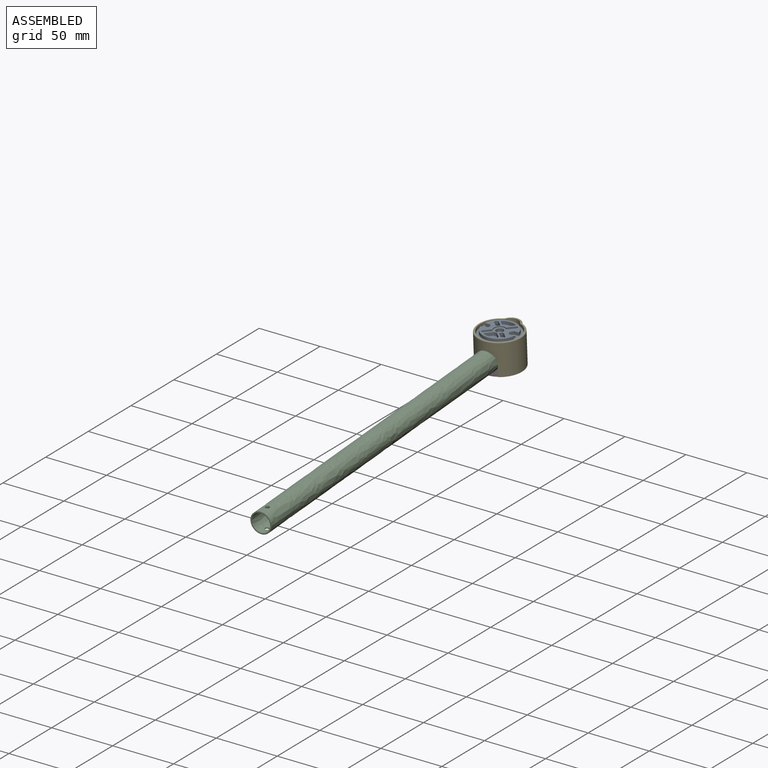
[diagram: assembled view]
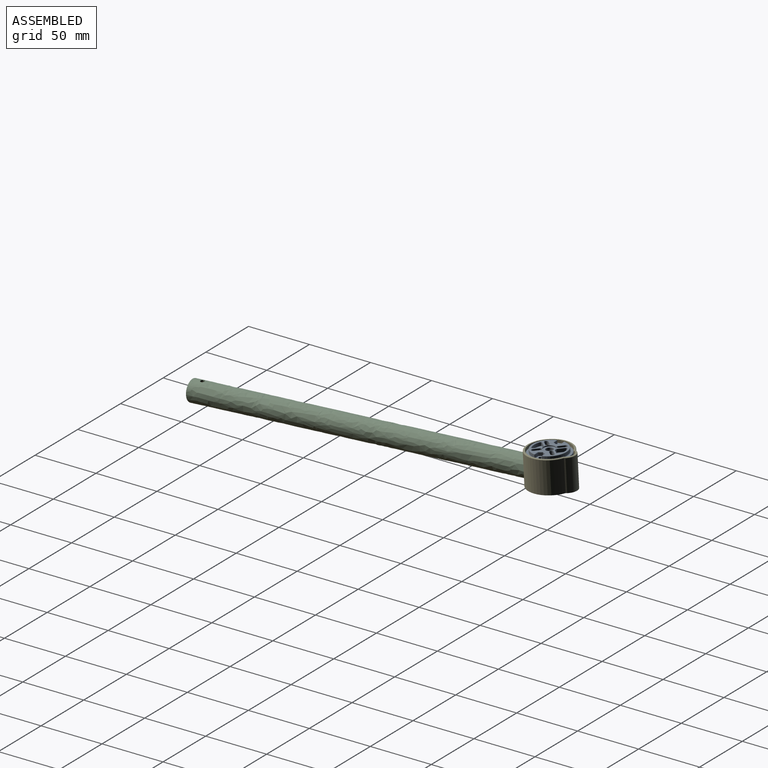
[diagram: assembled view, second angle]
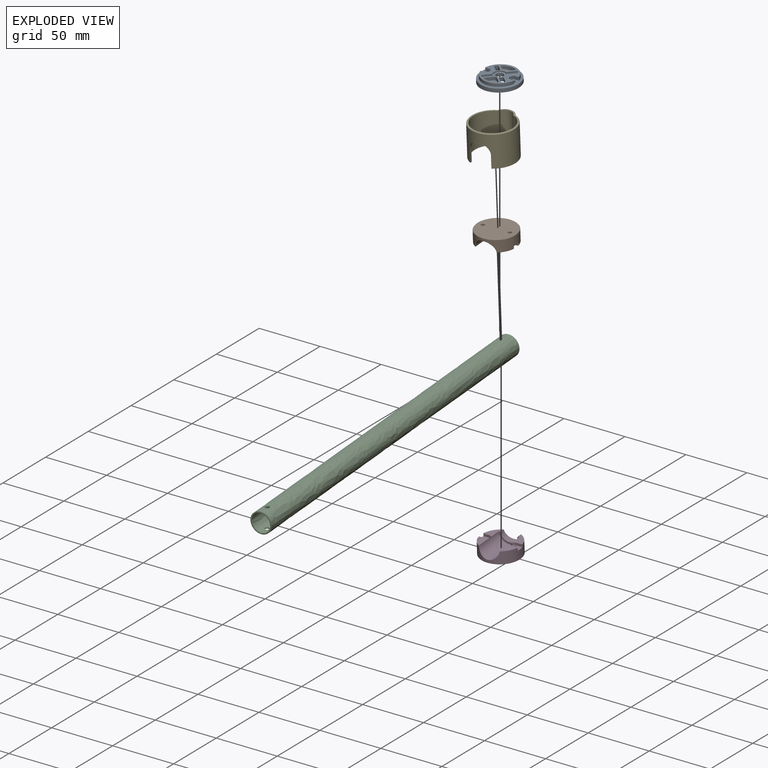
[diagram: exploded view]
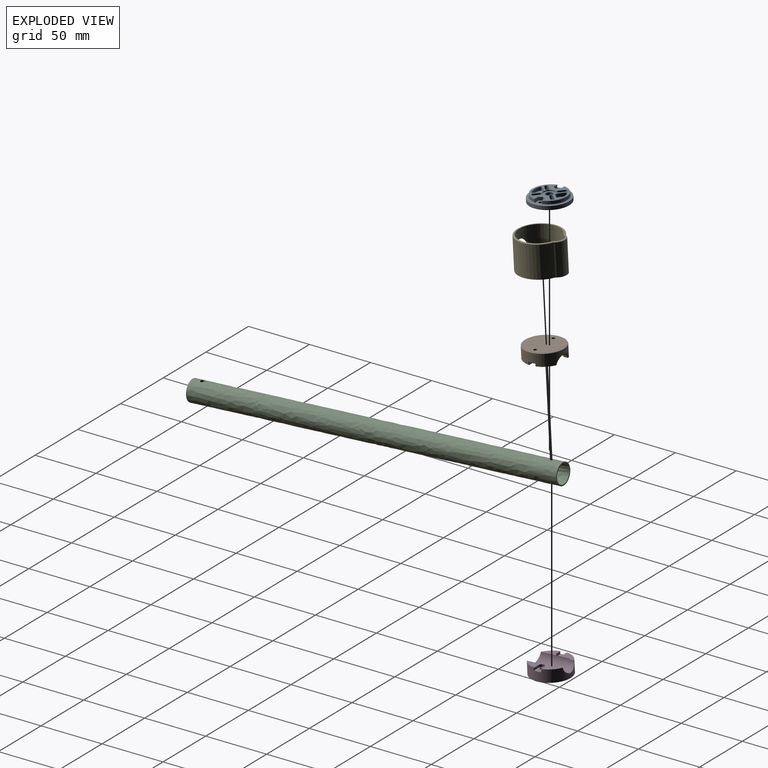
[diagram: exploded view, second angle]
ASSEMBLY  parts=5 mates=4
PART A: 193 faces, bbox 32.3x32.4x6.3 mm
  f0: cylinder r=3mm len=6mm, axis (0,0,-1), area 47.1mm2, adj f26,f50
  f1: plane 27.5x26.84mm, normal (0,0,1), area 231.7mm2, adj f74,f75,f76,f77,f78,f79,f80,f81
  f2: cylinder r=1.5mm len=2.56mm, axis (0,0,-1), area 11.8mm2, adj f3,f14,f131,f178
  f3: plane 3.18x3.18mm, normal (-0.71,0.71,0), area 11.2mm2, adj f2,f4,f140,f177
  f4: cylinder r=1.5mm len=2.56mm, axis (0,0,-1), area 11.8mm2, adj f3,f14,f146,f179
  f5: plane 3.18x3.18mm, normal (-0.71,0.71,0), area 11.2mm2, adj f6,f15,f133,f185
  f6: cylinder r=1.5mm len=2.56mm, axis (0,0,-1), area 11.8mm2, adj f5,f7,f127,f186
  f7: plane 3.18x3.18mm, normal (0.71,-0.71,0), area 11.2mm2, adj f6,f15,f134,f188
  f8: cylinder r=1.5mm len=2.56mm, axis (0,0,-1), area 11.8mm2, adj f9,f16,f132,f190
  f9: plane 3.18x3.18mm, normal (0.71,0.71,0), area 11.2mm2, adj f8,f10,f142,f192
  f10: cylinder r=1.5mm len=2.56mm, axis (0,0,-1), area 11.8mm2, adj f9,f16,f147,f191
  f11: cylinder r=1.5mm len=2.56mm, axis (0,0,-1), area 11.8mm2, adj f12,f17,f144,f183
  f12: plane 3.18x3.18mm, normal (0.71,0.71,0), area 11.2mm2, adj f11,f13,f135,f181
  f13: cylinder r=1.5mm len=2.56mm, axis (0,0,-1), area 11.8mm2, adj f12,f17,f128,f182
  f14: plane 3.18x3.18mm, normal (0.71,-0.71,0), area 11.2mm2, adj f2,f4,f139,f180
  f15: cylinder r=1.5mm len=2.56mm, axis (0,0,-1), area 11.8mm2, adj f5,f7,f143,f187
  f16: plane 3.18x3.18mm, normal (-0.71,-0.71,0), area 11.2mm2, adj f8,f10,f141,f189
  f17: plane 3.18x3.18mm, normal (-0.71,-0.71,0), area 11.2mm2, adj f11,f13,f136,f184
  f18: cylinder r=14mm len=27.33mm, axis (0,0,-1), area 85.1mm2, adj f106,f156,f158,f160
  f19: cylinder r=14mm len=27.33mm, axis (0,0,-1), area 85.1mm2, adj f107,f171,f173,f175
  f20: plane 32.26x32.26mm, normal (0,0,1), area 186.1mm2, adj f21,f22,f23,f106,f107,f157,f159,f161
  f21: cylinder r=1.5mm len=3mm, axis (0,0,-1), area 28.3mm2, adj f20,f24
  f22: cylinder r=1.5mm len=3mm, axis (0,0,-1), area 28.3mm2, adj f20,f24
  f23: cylinder r=16mm len=32mm, axis (0,0,-1), area 301.6mm2, adj f20,f24
  f24: plane 32x32mm, normal (0,0,-1), area 352.4mm2, adj f21,f22,f23,f82,f83,f84,f85,f86
  f25: cylinder r=4.75mm len=9.5mm, axis (0,0,1), area 22.4mm2, adj f26,f145
  f26: plane 9.5x9.5mm, normal (0,0,1), area 42.6mm2, adj f0,f25
  f27: plane 4.05x2.5mm, normal (0,1,0), area 10mm2, adj f28,f74,f172,f175,f176
  f28: plane 2.75x2.5mm, normal (-0.87,0.5,0), area 7.9mm2, adj f27,f29,f76,f170
  f29: plane 2.75x2.5mm, normal (-0.87,-0.5,0), area 7.9mm2, adj f28,f30,f77,f168
  f30: plane 4.05x2.5mm, normal (0,-1,0), area 10mm2, adj f29,f75,f160,f162,f166
  f31: plane 4.05x2.5mm, normal (0,-1,0), area 10mm2, adj f32,f78,f155,f156,f159
  f32: plane 2.75x2.5mm, normal (0.87,-0.5,0), area 7.9mm2, adj f31,f33,f79,f161
  f33: plane 2.75x2.5mm, normal (0.87,0.5,0), area 7.9mm2, adj f32,f34,f80,f163
  f34: plane 4.05x2.5mm, normal (0,1,0), area 10mm2, adj f33,f81,f165,f169,f171
  f35: plane 3.18x3.18mm, normal (0.71,0.71,0), area 9mm2, adj f36,f39,f50,f97
  f36: cylinder r=4mm len=2.46mm, axis (0,0,-1), area 5.5mm2, adj f35,f50,f84,f96
  f37: plane 3.18x3.18mm, normal (-0.71,-0.71,0), area 9mm2, adj f38,f39,f50,f99
  f38: cylinder r=4mm len=2.46mm, axis (0,0,-1), area 5.5mm2, adj f37,f50,f83,f100
  f39: cylinder r=4mm len=6.83mm, axis (0,0,-1), area 25.1mm2, adj f35,f37,f50,f98
  f40: cylinder r=4mm len=2.46mm, axis (0,0,-1), area 5.5mm2, adj f42,f50,f82,f86
  f41: plane 3.18x3.18mm, normal (0.71,0.71,0), area 9mm2, adj f43,f44,f50,f89
  f42: plane 3.18x3.18mm, normal (-0.71,-0.71,0), area 9mm2, adj f40,f44,f50,f87
  f43: cylinder r=4mm len=2.46mm, axis (0,0,-1), area 5.5mm2, adj f41,f50,f85,f90
  f44: cylinder r=4mm len=6.83mm, axis (0,0,-1), area 25.1mm2, adj f41,f42,f50,f88
  f45: plane 3.18x3.18mm, normal (-0.71,0.71,0), area 9mm2, adj f48,f49,f50,f104
  f46: plane 3.18x3.18mm, normal (0.71,-0.71,0), area 9mm2, adj f47,f48,f50,f102
  f47: cylinder r=4mm len=2.46mm, axis (0,0,-1), area 5.5mm2, adj f46,f50,f85,f101
  f48: cylinder r=4mm len=6.83mm, axis (0,0,-1), area 25.1mm2, adj f45,f46,f50,f103
  f49: cylinder r=4mm len=2.46mm, axis (0,0,-1), area 5.5mm2, adj f45,f50,f84,f105
  f50: plane 23.56x23.56mm, normal (0,0,-1), area 208.3mm2, adj f0,f35,f36,f37,f38,f39,f40,f41
  f51: cylinder r=4mm len=2.46mm, axis (0,0,-1), area 5.5mm2, adj f50,f53,f83,f91
  f52: plane 3.18x3.18mm, normal (0.71,-0.71,0), area 9mm2, adj f50,f54,f55,f94
  f53: plane 3.18x3.18mm, normal (-0.71,0.71,0), area 9mm2, adj f50,f51,f55,f92
  f54: cylinder r=4mm len=2.46mm, axis (0,0,-1), area 5.5mm2, adj f50,f52,f82,f95
  f55: cylinder r=4mm len=6.83mm, axis (0,0,-1), area 25.1mm2, adj f50,f52,f53,f93
  f56: plane 4.03x4.03mm, normal (-0.71,0.71,0), area 14.2mm2, adj f60,f63,f108,f130
  f57: plane 4.03x4.03mm, normal (0.71,0.71,0), area 14.2mm2, adj f61,f62,f115,f129
  f58: cylinder r=12.25mm len=10.13mm, axis (0,0,1), area 26.1mm2, adj f62,f63,f112,f124
  f59: cylinder r=5.25mm len=2.5mm, axis (0,0,1), area 2.6mm2, adj f60,f61,f111,f145
  f60: cylinder r=1mm len=2.5mm, axis (0,0,1), area 2.2mm2, adj f56,f59,f109,f138
  f61: cylinder r=1mm len=2.5mm, axis (0,0,1), area 2.2mm2, adj f57,f59,f113,f137
  f62: cylinder r=1mm len=2.5mm, axis (0,0,1), area 4.8mm2, adj f57,f58,f114,f125
  f63: cylinder r=1mm len=2.5mm, axis (0,0,1), area 4.8mm2, adj f56,f58,f110,f126
  f64: plane 10.8x6.53mm, normal (0,0,1), area 46mm2, adj f108,f109,f110,f111,f112,f113,f114,f115
  f65: cylinder r=5.25mm len=2.5mm, axis (0,0,1), area 2.6mm2, adj f69,f70,f119,f145
  f66: plane 4.03x4.03mm, normal (-0.71,-0.71,0), area 14.2mm2, adj f69,f72,f116,f148
  f67: plane 4.03x4.03mm, normal (0.71,-0.71,0), area 14.2mm2, adj f70,f71,f123,f154
  f68: cylinder r=12.25mm len=10.13mm, axis (0,0,1), area 26.1mm2, adj f71,f72,f120,f151
  f69: cylinder r=1mm len=2.5mm, axis (0,0,1), area 2.2mm2, adj f65,f66,f117,f150
  f70: cylinder r=1mm len=2.5mm, axis (0,0,1), area 2.2mm2, adj f65,f67,f121,f153
  f71: cylinder r=1mm len=2.5mm, axis (0,0,1), area 4.8mm2, adj f67,f68,f122,f152
  f72: cylinder r=1mm len=2.5mm, axis (0,0,1), area 4.8mm2, adj f66,f68,f118,f149
  f73: plane 10.8x6.53mm, normal (0,0,1), area 46mm2, adj f116,f117,f118,f119,f120,f121,f122,f123
  f74: plane 4.45x0.32mm, normal (0,0.71,0.71), area 1.5mm2, adj f1,f27,f76,f173,f175
  f75: plane 4.45x0.32mm, normal (0,-0.71,0.71), area 1.5mm2, adj f1,f30,f77,f158,f160
  f76: plane 3x1.88mm, normal (-0.61,0.35,0.71), area 1.2mm2, adj f1,f28,f74,f77
  f77: plane 3x1.88mm, normal (-0.61,-0.35,0.71), area 1.2mm2, adj f1,f29,f75,f76
  f78: plane 4.45x0.32mm, normal (0,-0.71,0.71), area 1.5mm2, adj f1,f31,f79,f156,f158
  f79: plane 3x1.88mm, normal (0.61,-0.35,0.71), area 1.2mm2, adj f1,f32,f78,f80
  f80: plane 3x1.88mm, normal (0.61,0.35,0.71), area 1.2mm2, adj f1,f33,f79,f81
  f81: plane 4.45x0.32mm, normal (0,0.71,0.71), area 1.5mm2, adj f1,f34,f80,f171,f173
  f82: cylinder r=5mm len=2.5mm, axis (0,0,-1), area 2.8mm2, adj f24,f40,f50,f54,f86,f95
  f83: cylinder r=5mm len=2.5mm, axis (0,0,-1), area 2.8mm2, adj f24,f38,f50,f51,f91,f100
  f84: cylinder r=5mm len=2.5mm, axis (0,0,-1), area 2.8mm2, adj f24,f36,f49,f50,f96,f105
  f85: cylinder r=5mm len=2.5mm, axis (0,0,-1), area 2.8mm2, adj f24,f43,f47,f50,f90,f101
  f86: cone r=4mm half-angle=45deg, axis (0,0,-1), area 2.1mm2, adj f24,f40,f82,f87
  f87: plane 3.54x3.54mm, normal (-0.5,-0.5,-0.71), area 3.2mm2, adj f24,f42,f86,f88
  f88: cone r=4mm half-angle=45deg, axis (0,0,-1), area 9.4mm2, adj f24,f44,f87,f89
  f89: plane 3.54x3.54mm, normal (0.5,0.5,-0.71), area 3.2mm2, adj f24,f41,f88,f90
  f90: cone r=4mm half-angle=45deg, axis (0,0,-1), area 2.1mm2, adj f24,f43,f85,f89
  f91: cone r=4mm half-angle=45deg, axis (0,0,-1), area 2.1mm2, adj f24,f51,f83,f92
  f92: plane 3.54x3.54mm, normal (-0.5,0.5,-0.71), area 3.2mm2, adj f24,f53,f91,f93
  f93: cone r=4mm half-angle=45deg, axis (0,0,-1), area 9.4mm2, adj f24,f55,f92,f94
  f94: plane 3.54x3.54mm, normal (0.5,-0.5,-0.71), area 3.2mm2, adj f24,f52,f93,f95
  f95: cone r=4mm half-angle=45deg, axis (0,0,-1), area 2.1mm2, adj f24,f54,f82,f94
  f96: cone r=4mm half-angle=45deg, axis (0,0,-1), area 2.1mm2, adj f24,f36,f84,f97
  f97: plane 3.54x3.54mm, normal (0.5,0.5,-0.71), area 3.2mm2, adj f24,f35,f96,f98
  f98: cone r=4mm half-angle=45deg, axis (0,0,-1), area 9.4mm2, adj f24,f39,f97,f99
  f99: plane 3.54x3.54mm, normal (-0.5,-0.5,-0.71), area 3.2mm2, adj f24,f37,f98,f100
  f100: cone r=4mm half-angle=45deg, axis (0,0,-1), area 2.1mm2, adj f24,f38,f83,f99
  f101: cone r=4mm half-angle=45deg, axis (0,0,-1), area 2.1mm2, adj f24,f47,f85,f102
  f102: plane 3.54x3.54mm, normal (0.5,-0.5,-0.71), area 3.2mm2, adj f24,f46,f101,f103
  f103: cone r=4mm half-angle=45deg, axis (0,0,-1), area 9.4mm2, adj f24,f48,f102,f104
  f104: plane 3.54x3.54mm, normal (-0.5,0.5,-0.71), area 3.2mm2, adj f24,f45,f103,f105
  f105: cone r=4mm half-angle=45deg, axis (0,0,-1), area 2.1mm2, adj f24,f49,f84,f104
  f106: torus R=14.5mm, axis (0,0,1), area 30.2mm2, adj f18,f20,f155,f162
  f107: torus R=14.5mm, axis (0,0,1), area 30.2mm2, adj f19,f20,f169,f176
  f108: cylinder r=0.25mm len=4.2mm, axis (-0.71,-0.71,0), area 2.2mm2, adj f56,f64,f109,f110
  f109: torus R=0.75mm, axis (0,0,1), area 0.3mm2, adj f60,f64,f108,f111
  f110: torus R=0.75mm, axis (0,0,1), area 0.7mm2, adj f63,f64,f108,f112
  f111: torus R=5.5mm, axis (0,0,1), area 0.4mm2, adj f59,f64,f109,f113
  f112: torus R=12mm, axis (0,0,1), area 4.1mm2, adj f58,f64,f110,f114
  f113: torus R=0.75mm, axis (0,0,1), area 0.3mm2, adj f61,f64,f111,f115
  f114: torus R=0.75mm, axis (0,0,1), area 0.7mm2, adj f62,f64,f112,f115
  f115: cylinder r=0.25mm len=4.2mm, axis (-0.71,0.71,0), area 2.2mm2, adj f57,f64,f113,f114
  f116: cylinder r=0.25mm len=4.2mm, axis (0.71,-0.71,0), area 2.2mm2, adj f66,f73,f117,f118
  f117: torus R=0.75mm, axis (0,0,1), area 0.3mm2, adj f69,f73,f116,f119
  f118: torus R=0.75mm, axis (0,0,1), area 0.7mm2, adj f72,f73,f116,f120
  f119: torus R=5.5mm, axis (0,0,1), area 0.4mm2, adj f65,f73,f117,f121
  f120: torus R=12mm, axis (0,0,1), area 4.1mm2, adj f68,f73,f118,f122
  f121: torus R=0.75mm, axis (0,0,1), area 0.3mm2, adj f70,f73,f119,f123
  f122: torus R=0.75mm, axis (0,0,1), area 0.7mm2, adj f71,f73,f120,f123
  f123: cylinder r=0.25mm len=4.2mm, axis (0.71,0.71,0), area 2.2mm2, adj f67,f73,f121,f122
  f124: torus R=12.5mm, axis (0,0,1), area 4.1mm2, adj f1,f58,f125,f126
  f125: torus R=1.25mm, axis (0,0,1), area 0.8mm2, adj f1,f62,f124,f129
  f126: torus R=1.25mm, axis (0,0,1), area 0.8mm2, adj f1,f63,f124,f130
  f127: torus R=1.75mm, axis (0,0,1), area 2mm2, adj f1,f6,f133,f134
  f128: torus R=1.75mm, axis (0,0,1), area 2mm2, adj f1,f13,f135,f136
  f129: cylinder r=0.25mm len=4.2mm, axis (-0.71,0.71,0), area 2.2mm2, adj f1,f57,f125,f137
  f130: cylinder r=0.25mm len=4.2mm, axis (-0.71,-0.71,0), area 2.2mm2, adj f1,f56,f126,f138
  f131: torus R=1.75mm, axis (0,0,1), area 2mm2, adj f1,f2,f139,f140
  f132: torus R=1.75mm, axis (0,0,1), area 2mm2, adj f1,f8,f141,f142
  f133: cylinder r=0.25mm len=3.36mm, axis (0.71,0.71,0), area 1.8mm2, adj f1,f5,f127,f143
  f134: cylinder r=0.25mm len=3.36mm, axis (-0.71,-0.71,0), area 1.8mm2, adj f1,f7,f127,f143
  f135: cylinder r=0.25mm len=3.36mm, axis (0.71,-0.71,0), area 1.8mm2, adj f1,f12,f128,f144
  f136: cylinder r=0.25mm len=3.36mm, axis (-0.71,0.71,0), area 1.8mm2, adj f1,f17,f128,f144
  f137: torus R=1.25mm, axis (0,0,1), area 0.4mm2, adj f1,f61,f129,f145
  f138: torus R=1.25mm, axis (0,0,1), area 0.4mm2, adj f1,f60,f130,f145
  f139: cylinder r=0.25mm len=3.36mm, axis (-0.71,-0.71,0), area 1.8mm2, adj f1,f14,f131,f146
  f140: cylinder r=0.25mm len=3.36mm, axis (0.71,0.71,0), area 1.8mm2, adj f1,f3,f131,f146
  f141: cylinder r=0.25mm len=3.36mm, axis (-0.71,0.71,0), area 1.8mm2, adj f1,f16,f132,f147
  f142: cylinder r=0.25mm len=3.36mm, axis (0.71,-0.71,0), area 1.8mm2, adj f1,f9,f132,f147
  f143: torus R=1.75mm, axis (0,0,1), area 1.8mm2, adj f1,f15,f133,f134,f145
  f144: torus R=1.75mm, axis (0,0,1), area 1.8mm2, adj f1,f11,f135,f136,f145
  f145: torus R=5mm, axis (0,0,1), area 12.2mm2, adj f1,f25,f59,f65,f137,f138,f143,f144
  f146: torus R=1.75mm, axis (0,0,1), area 1.8mm2, adj f1,f4,f139,f140,f145
  f147: torus R=1.75mm, axis (0,0,1), area 1.8mm2, adj f1,f10,f141,f142,f145
  f148: cylinder r=0.25mm len=4.2mm, axis (0.71,-0.71,0), area 2.2mm2, adj f1,f66,f149,f150
  f149: torus R=1.25mm, axis (0,0,1), area 0.8mm2, adj f1,f72,f148,f151
  f150: torus R=1.25mm, axis (0,0,1), area 0.4mm2, adj f1,f69,f145,f148
  f151: torus R=12.5mm, axis (0,0,1), area 4.1mm2, adj f1,f68,f149,f152
  f152: torus R=1.25mm, axis (0,0,1), area 0.8mm2, adj f1,f71,f151,f154
  f153: torus R=1.25mm, axis (0,0,1), area 0.4mm2, adj f1,f70,f145,f154
  f154: cylinder r=0.25mm len=4.2mm, axis (0.71,0.71,0), area 2.2mm2, adj f1,f67,f152,f153
  f155: bspline ~0.92x0.89mm, area 0.2mm2, adj f31,f106,f156,f157
  f156: cylinder r=0.25mm len=2.4mm, axis (0,0,-1), area 1mm2, adj f18,f31,f78,f155,f158
  f157: bspline ~0.84x0.5mm, area 0.1mm2, adj f20,f155,f159
  f158: torus R=13.75mm, axis (0,0,1), area 14.8mm2, adj f1,f18,f75,f78,f156,f160
  f159: cylinder r=0.25mm len=4.05mm, axis (1,0,0), area 1.6mm2, adj f20,f31,f157,f161
  f160: cylinder r=0.25mm len=2.4mm, axis (0,0,-1), area 1mm2, adj f18,f30,f75,f158,f162
  f161: cylinder r=0.25mm len=2.88mm, axis (0.5,0.87,0), area 1.2mm2, adj f20,f32,f159,f163
  f162: bspline ~0.92x0.89mm, area 0.2mm2, adj f30,f106,f160,f164
  f163: cylinder r=0.25mm len=2.88mm, axis (-0.5,0.87,0), area 1.2mm2, adj f20,f33,f161,f165
  f164: bspline ~0.72x0.5mm, area 0.1mm2, adj f20,f162,f166
  f165: cylinder r=0.25mm len=4.05mm, axis (-1,0,0), area 1.6mm2, adj f20,f34,f163,f167
  f166: cylinder r=0.25mm len=4.05mm, axis (1,0,0), area 1.6mm2, adj f20,f30,f164,f168
  f167: bspline ~0.72x0.5mm, area 0.1mm2, adj f20,f165,f169
  f168: cylinder r=0.25mm len=2.88mm, axis (0.5,-0.87,0), area 1.2mm2, adj f20,f29,f166,f170
  f169: bspline ~0.92x0.89mm, area 0.2mm2, adj f34,f107,f167,f171
  f170: cylinder r=0.25mm len=2.88mm, axis (-0.5,-0.87,0), area 1.2mm2, adj f20,f28,f168,f172
  f171: cylinder r=0.25mm len=2.4mm, axis (0,0,-1), area 1mm2, adj f19,f34,f81,f169,f173
  f172: cylinder r=0.25mm len=4.05mm, axis (-1,0,0), area 1.6mm2, adj f20,f27,f170,f174
  f173: torus R=13.75mm, axis (0,0,1), area 14.8mm2, adj f1,f19,f74,f81,f171,f175
  f174: bspline ~0.84x0.5mm, area 0.1mm2, adj f20,f172,f176
  f175: cylinder r=0.25mm len=2.4mm, axis (0,0,-1), area 1mm2, adj f19,f27,f74,f173,f176
  f176: bspline ~0.92x0.89mm, area 0.2mm2, adj f27,f107,f174,f175
  f177: plane 3.71x3.71mm, normal (-0.5,0.5,-0.71), area 4.8mm2, adj f3,f50,f178,f179
  f178: cone r=2.25mm half-angle=45deg, axis (0,0,-1), area 6.2mm2, adj f2,f50,f177,f180
  f179: cone r=2.25mm half-angle=45deg, axis (0,0,-1), area 6.2mm2, adj f4,f50,f177,f180
  f180: plane 3.71x3.71mm, normal (0.5,-0.5,-0.71), area 4.8mm2, adj f14,f50,f178,f179
  f181: plane 3.71x3.71mm, normal (0.5,0.5,-0.71), area 4.8mm2, adj f12,f50,f182,f183
  f182: cone r=2.25mm half-angle=45deg, axis (0,0,-1), area 6.2mm2, adj f13,f50,f181,f184
  f183: cone r=2.25mm half-angle=45deg, axis (0,0,-1), area 6.2mm2, adj f11,f50,f181,f184
  f184: plane 3.71x3.71mm, normal (-0.5,-0.5,-0.71), area 4.8mm2, adj f17,f50,f182,f183
  f185: plane 3.71x3.71mm, normal (-0.5,0.5,-0.71), area 4.8mm2, adj f5,f50,f186,f187
  f186: cone r=2.25mm half-angle=45deg, axis (0,0,-1), area 6.2mm2, adj f6,f50,f185,f188
  f187: cone r=2.25mm half-angle=45deg, axis (0,0,-1), area 6.2mm2, adj f15,f50,f185,f188
  f188: plane 3.71x3.71mm, normal (0.5,-0.5,-0.71), area 4.8mm2, adj f7,f50,f186,f187
  f189: plane 3.71x3.71mm, normal (-0.5,-0.5,-0.71), area 4.8mm2, adj f16,f50,f190,f191
  f190: cone r=2.25mm half-angle=45deg, axis (0,0,-1), area 6.2mm2, adj f8,f50,f189,f192
  f191: cone r=2.25mm half-angle=45deg, axis (0,0,-1), area 6.2mm2, adj f10,f50,f189,f192
  f192: plane 3.71x3.71mm, normal (0.5,0.5,-0.71), area 4.8mm2, adj f9,f50,f190,f191
PART B: 30 faces, bbox 34.7x34.7x11.1 mm
  f0: plane 26.8x8.39mm, normal (0,0,-1), area 101.9mm2, adj f8,f9,f10,f11,f12,f16,f18,f19
  f1: cylinder r=16mm len=32mm, axis (0,0,1), area 701.6mm2, adj f17,f18,f19,f20,f21,f22,f23,f24
  f2: plane 26.8x8.39mm, normal (0,0,-1), area 101.9mm2, adj f8,f9,f13,f14,f15,f16,f22,f23
  f3: plane 7.04x5.02mm, normal (0,0,-1), area 25.6mm2, adj f6,f13,f14,f15,f26,f27,f28
  f4: plane 7.04x5.02mm, normal (0,0,-1), area 25.6mm2, adj f7,f10,f11,f12,f17,f18,f19
  f5: plane 31x31mm, normal (0,0,1), area 741.6mm2, adj f6,f7,f29
  f6: cylinder r=1.45mm len=8mm, axis (0,0,1), area 72.9mm2, adj f3,f5
  f7: cylinder r=1.45mm len=8mm, axis (0,0,1), area 72.9mm2, adj f4,f5
  f8: cylinder r=8.5mm len=22.97mm, axis (0,-1,0), area 567.3mm2, adj f0,f2,f9,f22
  f9: plane 16.88x7.5mm, normal (0,-1,0), area 33.5mm2, adj f0,f2,f8,f16
  f10: cylinder r=2.5mm len=5mm, axis (0,0,1), area 15.7mm2, adj f0,f4,f11,f12
  f11: plane 4.25x2mm, normal (0,-1,0), area 8.5mm2, adj f0,f4,f10,f19
  f12: plane 4.25x2mm, normal (0,1,0), area 8.5mm2, adj f0,f4,f10,f18
  f13: cylinder r=2.5mm len=5mm, axis (0,0,1), area 15.7mm2, adj f2,f3,f14,f15
  f14: plane 4.25x2mm, normal (0,1,0), area 8.5mm2, adj f2,f3,f13,f26
  f15: plane 4.25x2mm, normal (0,-1,0), area 8.5mm2, adj f2,f3,f13,f27
  f16: cylinder r=7mm len=13.86mm, axis (0,-1,0), area 86.7mm2, adj f0,f2,f9,f23
  f17: torus R=15.5mm, axis (0,0,1), area 4.4mm2, adj f1,f4,f18,f19
  f18: cylinder r=0.5mm len=2.5mm, axis (0,0,1), area 1.8mm2, adj f0,f1,f4,f12,f17,f20
  f19: cylinder r=0.5mm len=2.5mm, axis (0,0,1), area 1.8mm2, adj f0,f1,f4,f11,f17,f21
  f20: torus R=15.5mm, axis (0,0,1), area 9.9mm2, adj f0,f1,f18,f22
  f21: torus R=15.5mm, axis (0,0,1), area 11.3mm2, adj f0,f1,f19,f23
  f22: bspline ~18.58x9.06mm, area 23.8mm2, adj f0,f1,f2,f8,f20,f24
  f23: bspline ~15.49x7.47mm, area 18.6mm2, adj f0,f1,f2,f16,f21,f25
  f24: torus R=15.5mm, axis (0,0,1), area 9.9mm2, adj f1,f2,f22,f26
  f25: torus R=15.5mm, axis (0,0,1), area 11.3mm2, adj f1,f2,f23,f27
  f26: cylinder r=0.5mm len=2.5mm, axis (0,0,1), area 1.8mm2, adj f1,f2,f3,f14,f24,f28
  f27: cylinder r=0.5mm len=2.5mm, axis (0,0,1), area 1.8mm2, adj f1,f2,f3,f15,f25,f28
  f28: torus R=15.5mm, axis (0,0,1), area 4.4mm2, adj f1,f3,f26,f27
  f29: torus R=15.5mm, axis (0,0,-1), area 78.1mm2, adj f1,f5
PART C: 6 faces, bbox 17.1x300.3x32.7 mm
  f0: bspline ~300.13x30.6mm, area 14115mm2, adj f2,f3,f4,f5
  f1: bspline ~300.23x32.58mm, area 15999.4mm2, adj f2,f3,f4,f5
  f2: plane 17x16.96mm, normal (0,1,-0.05), area 50.2mm2, adj f0,f1
  f3: plane 17.08x17.04mm, normal (0,-1,0.05), area 50.2mm2, adj f0,f1
  f4: cylinder r=1.7mm len=3.4mm, axis (0,0,1), area 10.9mm2, adj f0,f1
  f5: cylinder r=1.7mm len=3.4mm, axis (0,0,1), area 10.9mm2, adj f0,f1
PART D: 24 faces, bbox 34.6x34.6x10 mm
  f0: plane 28.01x8.78mm, normal (0,0,1), area 115.9mm2, adj f1,f5,f6,f10,f11,f12,f16,f20
  f1: cylinder r=16mm len=32mm, axis (0,0,1), area 759.2mm2, adj f0,f2,f6,f16,f17,f18,f19,f20
  f2: plane 28.01x8.78mm, normal (0,0,1), area 115.9mm2, adj f1,f5,f6,f13,f14,f15,f16,f17
  f3: plane 7.04x5.02mm, normal (0,0,1), area 25.6mm2, adj f7,f13,f14,f15,f17,f18,f19
  f4: plane 7.04x5.02mm, normal (0,0,1), area 25.6mm2, adj f9,f10,f11,f12,f20,f21,f22
  f5: plane 16.88x7.5mm, normal (0,-1,0), area 33.5mm2, adj f0,f2,f6,f16
  f6: cylinder r=8.5mm len=26.31mm, axis (0,-1,0), area 622.7mm2, adj f0,f1,f2,f5
  f7: cylinder r=1.45mm len=8mm, axis (0,0,1), area 72.9mm2, adj f3,f8
  f8: plane 31x31mm, normal (0,0,-1), area 741.6mm2, adj f7,f9,f23
  f9: cylinder r=1.45mm len=8mm, axis (0,0,1), area 72.9mm2, adj f4,f8
  f10: cylinder r=2.5mm len=5mm, axis (0,0,1), area 15.7mm2, adj f0,f4,f11,f12
  f11: plane 4.25x2mm, normal (0,-1,0), area 8.5mm2, adj f0,f4,f10,f20
  f12: plane 4.25x2mm, normal (0,1,0), area 8.5mm2, adj f0,f4,f10,f21
  f13: plane 4.25x2mm, normal (0,1,0), area 8.5mm2, adj f2,f3,f15,f17
  f14: plane 4.25x2mm, normal (0,-1,0), area 8.5mm2, adj f2,f3,f15,f18
  f15: cylinder r=2.5mm len=5mm, axis (0,0,1), area 15.7mm2, adj f2,f3,f13,f14
  f16: cylinder r=7mm len=13.86mm, axis (0,-1,0), area 99.5mm2, adj f0,f1,f2,f5
  f17: cylinder r=0.5mm len=2.5mm, axis (0,0,1), area 1.9mm2, adj f1,f2,f3,f13,f19
  f18: cylinder r=0.5mm len=2.5mm, axis (0,0,1), area 1.9mm2, adj f1,f2,f3,f14,f19
  f19: torus R=15.5mm, axis (0,0,1), area 4.3mm2, adj f1,f3,f17,f18
  f20: cylinder r=0.5mm len=2.5mm, axis (0,0,1), area 1.9mm2, adj f0,f1,f4,f11,f22
  f21: cylinder r=0.5mm len=2.5mm, axis (0,0,1), area 1.9mm2, adj f0,f1,f4,f12,f22
  f22: torus R=15.5mm, axis (0,0,1), area 4.3mm2, adj f1,f4,f20,f21
  f23: torus R=15.5mm, axis (0,0,-1), area 78.1mm2, adj f1,f8
PART E: 32 faces, bbox 39x41.2x26 mm
  f0: plane 38.06x35mm, normal (0,0,1), area 110.1mm2, adj f1,f8,f19,f20
  f1: cylinder r=6.5mm len=26mm, axis (0,0,1), area 409.9mm2, adj f0,f2,f8
  f2: plane 36.93x36mm, normal (0,0,-1), area 140.8mm2, adj f1,f3,f4,f6,f7,f8
  f3: cylinder r=8mm len=25.5mm, axis (0,0,1), area 460.3mm2, adj f2,f7,f20
  f4: plane 10x1.72mm, normal (1,0,0), area 17.2mm2, adj f2,f5,f7,f8
  f5: cylinder r=8.5mm len=17mm, axis (0,1,0), area 42.9mm2, adj f4,f6,f7,f8
  f6: plane 10x1.72mm, normal (-1,0,0), area 17.2mm2, adj f2,f5,f7,f8
  f7: cylinder r=18mm len=36mm, axis (0,0,1), area 2210.6mm2, adj f2,f3,f4,f5,f6,f19
  f8: cylinder r=16.5mm len=33mm, axis (0,0,1), area 2043.9mm2, adj f0,f1,f2,f4,f5,f6,f9,f16
  f9: cylinder r=0.5mm len=5mm, axis (0,0,1), area 3.8mm2, adj f8,f10,f13,f15,f16,f18
  f10: plane 4.76x4mm, normal (0,1,0), area 19mm2, adj f9,f11,f13,f15
  f11: cylinder r=2.5mm len=5mm, axis (0,0,1), area 31.4mm2, adj f10,f12,f13,f15
  f12: plane 4.76x4mm, normal (0,-1,0), area 19mm2, adj f11,f13,f15,f17
  f13: plane 7.54x5.02mm, normal (0,0,-1), area 26.6mm2, adj f9,f10,f11,f12,f14,f16,f17
  f14: cylinder r=1.6mm len=4mm, axis (0,0,1), area 40.2mm2, adj f13,f15
  f15: plane 7.54x5.02mm, normal (0,0,1), area 26.6mm2, adj f9,f10,f11,f12,f14,f17,f18
  f16: torus R=16mm, axis (0,0,-1), area 4.3mm2, adj f8,f9,f13,f17
  f17: cylinder r=0.5mm len=5mm, axis (0,0,1), area 3.8mm2, adj f8,f12,f13,f15,f16,f18
  f18: torus R=16mm, axis (0,0,-1), area 4.3mm2, adj f8,f9,f15,f17
  f19: torus R=17.5mm, axis (0,0,1), area 76.5mm2, adj f0,f7,f20
  f20: torus R=7.5mm, axis (0,0,1), area 14mm2, adj f0,f3,f19
  f21: cylinder r=16.5mm len=6.19mm, axis (0,0,1), area 31.1mm2, adj f22,f29,f30,f31
  f22: torus R=16mm, axis (0,0,-1), area 4.3mm2, adj f21,f23,f29,f31
  f23: plane 7.54x5.02mm, normal (0,0,1), area 26.6mm2, adj f22,f24,f26,f27,f28,f29,f31
  f24: plane 4.76x4mm, normal (0,-1,0), area 19mm2, adj f23,f25,f26,f31
  f25: plane 7.54x5.02mm, normal (0,0,-1), area 26.6mm2, adj f24,f26,f27,f28,f29,f30,f31
  f26: cylinder r=2.5mm len=5mm, axis (0,0,1), area 31.4mm2, adj f23,f24,f25,f27
  f27: plane 4.76x4mm, normal (0,1,0), area 19mm2, adj f23,f25,f26,f29
  f28: cylinder r=1.6mm len=4mm, axis (0,0,1), area 40.2mm2, adj f23,f25
  f29: cylinder r=0.5mm len=5mm, axis (0,0,1), area 3.8mm2, adj f21,f22,f23,f25,f27,f30
  f30: torus R=16mm, axis (0,0,-1), area 4.3mm2, adj f21,f25,f29,f31
  f31: cylinder r=0.5mm len=5mm, axis (0,0,1), area 3.8mm2, adj f21,f22,f23,f24,f25,f30
PLACE A rot(axis=(0.93,0.01,0.37),3.2deg) t=(-4.66,239.15,7.61)mm
PLACE B rot(axis=(0.93,0.01,0.37),3.2deg) t=(-4.66,238.98,10.77)mm
PLACE C rot(axis=(0,0,-1),178.8deg) t=(2.53,-110.78,-14.03)mm fixed
PLACE D rot(axis=(0.93,0.01,0.37),3.2deg) t=(-4.66,238.98,10.77)mm
PLACE E rot(axis=(0.93,0.01,0.37),3.2deg) t=(-4.66,238.98,10.77)mm
MATE fastened D.f6 <-> C.f3  axis (0.02,-1,-0.05) through (-4.88,249.8,1.32)mm
MATE fastened B.f13 <-> E.f26  axis (0,-0.05,1) through (6.29,239.63,2.78)mm
MATE fastened B.f1 <-> A.f0  axis (0,-0.05,1) through (-4.66,238.93,11.77)mm
MATE fastened B.f8 <-> C.f3  axis (0.02,-1,-0.05) through (-4.88,249.8,1.32)mm
